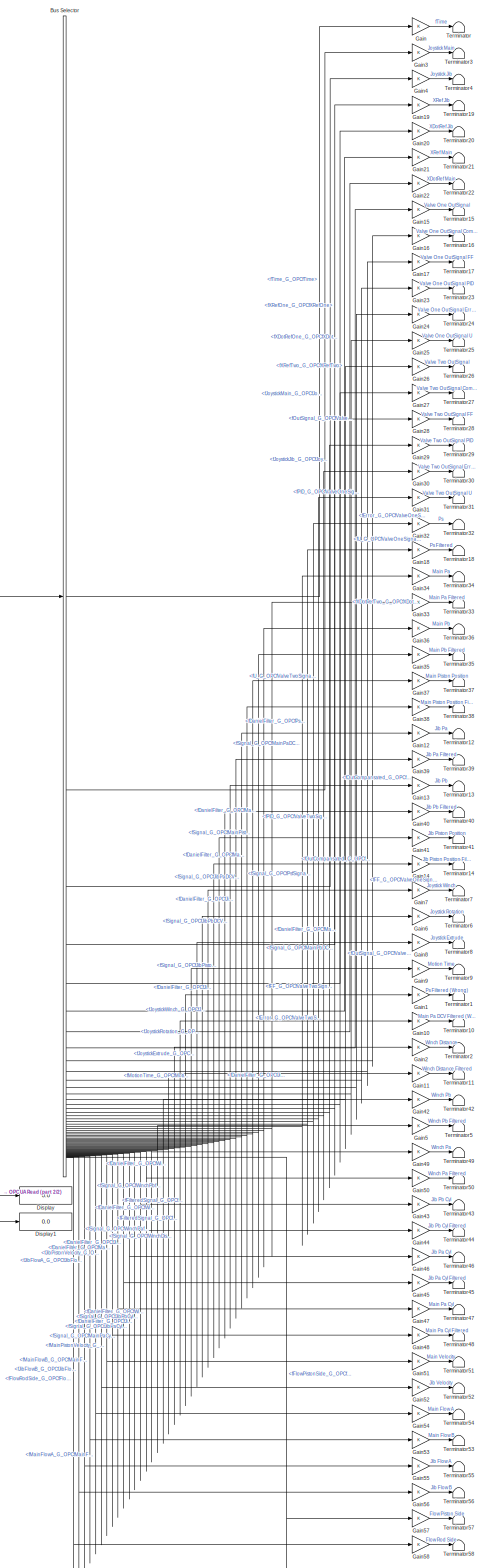
[diagram: root canvas - part 1/2, most of the canvas]
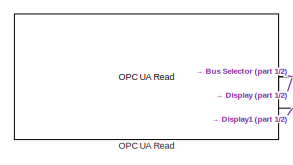
[diagram: root canvas - part 2/2, bottom left region]
MODEL slx_228df3352b81
KIND model
CONFIG AbsTol = auto
CONFIG EnableMultiTasking = off
CONFIG FixedStep = 0.01
CONFIG MaxStep = auto
CONFIG MinStep = auto
CONFIG RelTol = 1e-3
CONFIG SampleTimeConstraint = Unconstrained
CONFIG SolverName = FixedStepAuto
CONFIG StartTime = 0.0
CONFIG StopTime = inf
BLOCK [BusSelector] Bus Selector
  OutputSignals = fTime_G_OPCfTime,fJoystickMain_G_OPCfJoystickMain,fJoystickJib_G_OPCfJoystickJib,fXRefOne_G_OPCfXRefOne,fXDotRefOne_G_OPCfXDotRefOne,fXRefTwo_G_OPCfXRefTwo,fXDotRefTwo_G_OPCfXDotRefTwo,fOutSignal_G_OPCfValveOneSignalsfOutSignal,fOutCompansated_G_OPCfValveOneSignalsfOutCompansated,fFF_G_OPCfValveOneSignalsfFF,fPID_G_OPCfValveOneSignalsfPID,fError_G_OPCfValveOneSignalsfError,fU_G_OPCfValveOneSignals...<+1685ch>
BLOCK [Display] Display
  Decimation = 1
BLOCK [Display] Display1
  Decimation = 1
BLOCK [Gain] Gain
BLOCK [Gain] Gain1
BLOCK [Gain] Gain10
BLOCK [Gain] Gain11
BLOCK [Gain] Gain12
BLOCK [Gain] Gain13
BLOCK [Gain] Gain14
BLOCK [Gain] Gain15
BLOCK [Gain] Gain16
BLOCK [Gain] Gain17
BLOCK [Gain] Gain18
BLOCK [Gain] Gain19
BLOCK [Gain] Gain2
BLOCK [Gain] Gain20
BLOCK [Gain] Gain21
BLOCK [Gain] Gain22
BLOCK [Gain] Gain23
BLOCK [Gain] Gain24
BLOCK [Gain] Gain25
BLOCK [Gain] Gain26
BLOCK [Gain] Gain27
BLOCK [Gain] Gain28
BLOCK [Gain] Gain29
BLOCK [Gain] Gain3
BLOCK [Gain] Gain30
BLOCK [Gain] Gain31
BLOCK [Gain] Gain32
BLOCK [Gain] Gain33
BLOCK [Gain] Gain34
BLOCK [Gain] Gain35
BLOCK [Gain] Gain36
BLOCK [Gain] Gain37
BLOCK [Gain] Gain38
BLOCK [Gain] Gain39
BLOCK [Gain] Gain4
BLOCK [Gain] Gain40
BLOCK [Gain] Gain41
BLOCK [Gain] Gain42
BLOCK [Gain] Gain43
BLOCK [Gain] Gain44
BLOCK [Gain] Gain45
BLOCK [Gain] Gain46
BLOCK [Gain] Gain47
BLOCK [Gain] Gain48
BLOCK [Gain] Gain49
BLOCK [Gain] Gain5
BLOCK [Gain] Gain50
BLOCK [Gain] Gain51
BLOCK [Gain] Gain52
BLOCK [Gain] Gain53
BLOCK [Gain] Gain54
BLOCK [Gain] Gain55
BLOCK [Gain] Gain56
BLOCK [Gain] Gain57
BLOCK [Gain] Gain58
BLOCK [Gain] Gain6
BLOCK [Gain] Gain7
BLOCK [Gain] Gain8
BLOCK [Gain] Gain9
BLOCK [Reference] OPC UA Read  REF=opcualib/OPC UA Read
  SourceBlock = opcualib/OPC UA Read
  SourceType = opcUARead
BLOCK [Terminator] Terminator
BLOCK [Terminator] Terminator1
BLOCK [Terminator] Terminator10
BLOCK [Terminator] Terminator11
BLOCK [Terminator] Terminator12
BLOCK [Terminator] Terminator13
BLOCK [Terminator] Terminator14
BLOCK [Terminator] Terminator15
BLOCK [Terminator] Terminator16
BLOCK [Terminator] Terminator17
BLOCK [Terminator] Terminator18
BLOCK [Terminator] Terminator19
BLOCK [Terminator] Terminator2
BLOCK [Terminator] Terminator20
BLOCK [Terminator] Terminator21
BLOCK [Terminator] Terminator22
BLOCK [Terminator] Terminator23
BLOCK [Terminator] Terminator24
BLOCK [Terminator] Terminator25
BLOCK [Terminator] Terminator26
BLOCK [Terminator] Terminator27
BLOCK [Terminator] Terminator28
BLOCK [Terminator] Terminator29
BLOCK [Terminator] Terminator3
BLOCK [Terminator] Terminator30
BLOCK [Terminator] Terminator31
BLOCK [Terminator] Terminator32
BLOCK [Terminator] Terminator33
BLOCK [Terminator] Terminator34
BLOCK [Terminator] Terminator35
BLOCK [Terminator] Terminator36
BLOCK [Terminator] Terminator37
BLOCK [Terminator] Terminator38
BLOCK [Terminator] Terminator39
BLOCK [Terminator] Terminator4
BLOCK [Terminator] Terminator40
BLOCK [Terminator] Terminator41
BLOCK [Terminator] Terminator42
BLOCK [Terminator] Terminator43
BLOCK [Terminator] Terminator44
BLOCK [Terminator] Terminator45
BLOCK [Terminator] Terminator46
BLOCK [Terminator] Terminator47
BLOCK [Terminator] Terminator48
BLOCK [Terminator] Terminator49
BLOCK [Terminator] Terminator5
BLOCK [Terminator] Terminator50
BLOCK [Terminator] Terminator51
BLOCK [Terminator] Terminator52
BLOCK [Terminator] Terminator53
BLOCK [Terminator] Terminator54
BLOCK [Terminator] Terminator55
BLOCK [Terminator] Terminator56
BLOCK [Terminator] Terminator57
BLOCK [Terminator] Terminator58
BLOCK [Terminator] Terminator6
BLOCK [Terminator] Terminator7
BLOCK [Terminator] Terminator8
BLOCK [Terminator] Terminator9
LINE Bus Selector:1 -> Gain:1
LINE Bus Selector:10 -> Gain17:1
LINE Bus Selector:11 -> Gain23:1
LINE Bus Selector:12 -> Gain24:1
LINE Bus Selector:13 -> Gain25:1
LINE Bus Selector:14 -> Gain26:1
LINE Bus Selector:15 -> Gain27:1
LINE Bus Selector:16 -> Gain28:1
LINE Bus Selector:17 -> Gain29:1
LINE Bus Selector:18 -> Gain30:1
LINE Bus Selector:19 -> Gain31:1
LINE Bus Selector:2 -> Gain3:1
LINE Bus Selector:20 -> Gain32:1
LINE Bus Selector:21 -> Gain18:1
LINE Bus Selector:22 -> Gain34:1
LINE Bus Selector:23 -> Gain33:1
LINE Bus Selector:24 -> Gain36:1
LINE Bus Selector:25 -> Gain35:1
LINE Bus Selector:26 -> Gain37:1
LINE Bus Selector:27 -> Gain38:1
LINE Bus Selector:28 -> Gain12:1
LINE Bus Selector:29 -> Gain39:1
LINE Bus Selector:3 -> Gain4:1
LINE Bus Selector:30 -> Gain13:1
LINE Bus Selector:31 -> Gain40:1
LINE Bus Selector:32 -> Gain41:1
LINE Bus Selector:33 -> Gain14:1
LINE Bus Selector:34 -> Gain7:1
LINE Bus Selector:35 -> Gain6:1
LINE Bus Selector:36 -> Gain8:1
LINE Bus Selector:37 -> Gain9:1
LINE Bus Selector:38 -> Gain1:1
LINE Bus Selector:39 -> Gain10:1
LINE Bus Selector:4 -> Gain19:1
LINE Bus Selector:40 -> Gain2:1
LINE Bus Selector:41 -> Gain11:1
LINE Bus Selector:42 -> Gain42:1
LINE Bus Selector:43 -> Gain5:1
LINE Bus Selector:44 -> Gain49:1
LINE Bus Selector:45 -> Gain50:1
LINE Bus Selector:46 -> Gain43:1
LINE Bus Selector:47 -> Gain44:1
LINE Bus Selector:48 -> Gain46:1
LINE Bus Selector:49 -> Gain45:1
LINE Bus Selector:5 -> Gain20:1
LINE Bus Selector:50 -> Gain47:1
LINE Bus Selector:51 -> Gain48:1
LINE Bus Selector:52 -> Gain51:1
LINE Bus Selector:53 -> Gain52:1
LINE Bus Selector:54 -> Gain54:1
LINE Bus Selector:55 -> Gain53:1
LINE Bus Selector:56 -> Gain55:1
LINE Bus Selector:57 -> Gain56:1
LINE Bus Selector:58 -> Gain57:1
LINE Bus Selector:59 -> Gain58:1
LINE Bus Selector:6 -> Gain21:1
LINE Bus Selector:7 -> Gain22:1
LINE Bus Selector:8 -> Gain15:1
LINE Bus Selector:9 -> Gain16:1
LINE Gain10:1 -> Terminator10:1
LINE Gain11:1 -> Terminator11:1
LINE Gain12:1 -> Terminator12:1
LINE Gain13:1 -> Terminator13:1
LINE Gain14:1 -> Terminator14:1
LINE Gain15:1 -> Terminator15:1
LINE Gain16:1 -> Terminator16:1
LINE Gain17:1 -> Terminator17:1
LINE Gain18:1 -> Terminator18:1
LINE Gain19:1 -> Terminator19:1
LINE Gain1:1 -> Terminator1:1
LINE Gain20:1 -> Terminator20:1
LINE Gain21:1 -> Terminator21:1
LINE Gain22:1 -> Terminator22:1
LINE Gain23:1 -> Terminator23:1
LINE Gain24:1 -> Terminator24:1
LINE Gain25:1 -> Terminator25:1
LINE Gain26:1 -> Terminator26:1
LINE Gain27:1 -> Terminator27:1
LINE Gain28:1 -> Terminator28:1
LINE Gain29:1 -> Terminator29:1
LINE Gain2:1 -> Terminator2:1
LINE Gain30:1 -> Terminator30:1
LINE Gain31:1 -> Terminator31:1
LINE Gain32:1 -> Terminator32:1
LINE Gain33:1 -> Terminator33:1
LINE Gain34:1 -> Terminator34:1
LINE Gain35:1 -> Terminator35:1
LINE Gain36:1 -> Terminator36:1
LINE Gain37:1 -> Terminator37:1
LINE Gain38:1 -> Terminator38:1
LINE Gain39:1 -> Terminator39:1
LINE Gain3:1 -> Terminator3:1
LINE Gain40:1 -> Terminator40:1
LINE Gain41:1 -> Terminator41:1
LINE Gain42:1 -> Terminator42:1
LINE Gain43:1 -> Terminator43:1
LINE Gain44:1 -> Terminator44:1
LINE Gain45:1 -> Terminator45:1
LINE Gain46:1 -> Terminator46:1
LINE Gain47:1 -> Terminator47:1
LINE Gain48:1 -> Terminator48:1
LINE Gain49:1 -> Terminator49:1
LINE Gain4:1 -> Terminator4:1
LINE Gain50:1 -> Terminator50:1
LINE Gain51:1 -> Terminator51:1
LINE Gain52:1 -> Terminator52:1
LINE Gain53:1 -> Terminator53:1
LINE Gain54:1 -> Terminator54:1
LINE Gain55:1 -> Terminator55:1
LINE Gain56:1 -> Terminator56:1
LINE Gain57:1 -> Terminator57:1
LINE Gain58:1 -> Terminator58:1
LINE Gain5:1 -> Terminator5:1
LINE Gain6:1 -> Terminator6:1
LINE Gain7:1 -> Terminator7:1
LINE Gain8:1 -> Terminator8:1
LINE Gain9:1 -> Terminator9:1
LINE Gain:1 -> Terminator:1
LINE OPC UA Read:1 -> Bus Selector:1
LINE OPC UA Read:2 -> Display:1
LINE OPC UA Read:3 -> Display1:1
